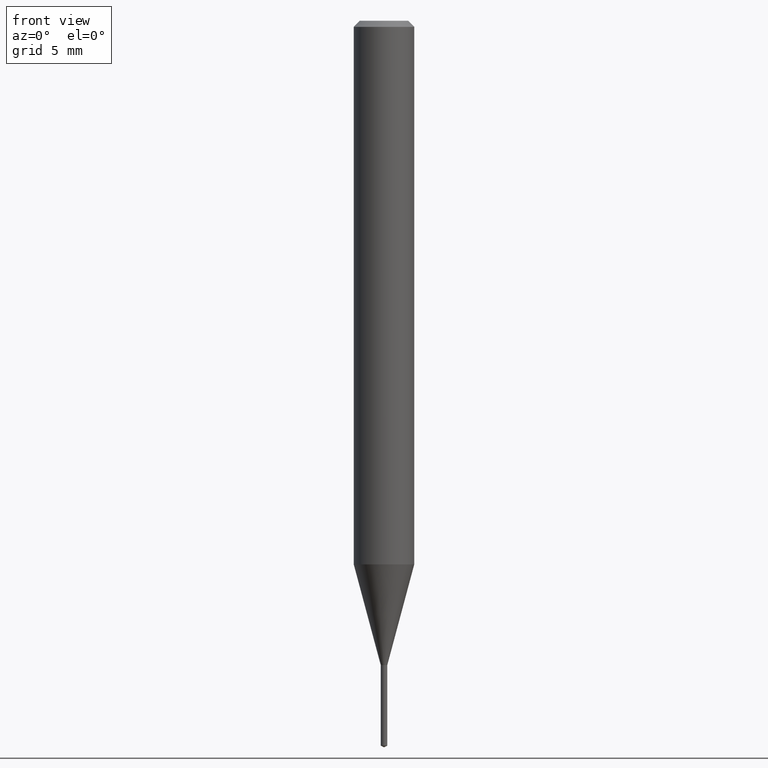
[diagram: clean part render]
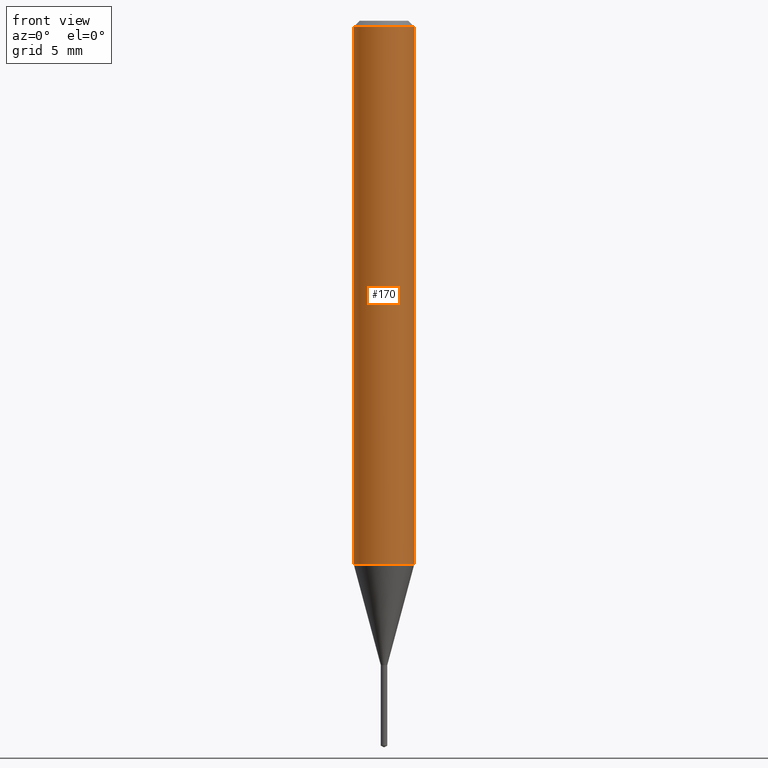
[diagram: same view with one face highlighted and labeled with its STEP entity id]
A machine part, front view. The second image highlights one B-rep face of the part: STEP entity #170.
In plain terms, the highlighted cylindrical surface (edge-blend (fillet) strip) has radius 1.5875 mm, axis along (-0, 0, 1).
Its self-contained STEP definition (entity closure, byte-faithful):
#13 = LINE ( 'NONE', #477, #33 ) ;
#16 = DIRECTION ( 'NONE',  ( -2.445468806185136597E-29, 3.491481338843145583E-15, 1.000000000000000000 ) ) ;
#33 = VECTOR ( 'NONE', #357, 39.37007874015748143 ) ;
#47 = CIRCLE ( 'NONE', #106, 0.06250000000000013878 ) ;
#69 = CARTESIAN_POINT ( 'NONE',  ( 3.056836007731442729E-31, -4.364351673553962300E-17, -0.01250000000000008916 ) ) ;
#84 = FACE_OUTER_BOUND ( 'NONE', #140, .T. ) ;
#96 = CARTESIAN_POINT ( 'NONE',  ( -0.06250000000000006939, 4.440892098500631092E-16, -3.074334431409319267E-30 ) ) ;
#106 = AXIS2_PLACEMENT_3D ( 'NONE', #316, #16, #387 ) ;
#132 = AXIS2_PLACEMENT_3D ( 'NONE', #237, #231, #379 ) ;
#140 = EDGE_LOOP ( 'NONE', ( #370, #143, #433, #408 ) ) ;
#143 = ORIENTED_EDGE ( 'NONE', *, *, #255, .T. ) ;
#170 = ADVANCED_FACE ( 'NONE', ( #84 ), #375, .T. ) ;
#173 = CARTESIAN_POINT ( 'NONE',  ( -0.06250000000000000000, -1.537043932328202372E-15, -0.01250000000000008916 ) ) ;
#177 = CARTESIAN_POINT ( 'NONE',  ( 0.06250000000000000000, -4.800786840909313294E-16, -0.01250000000000008916 ) ) ;
#183 = VERTEX_POINT ( 'NONE', #420 ) ;
#205 = CARTESIAN_POINT ( 'NONE',  ( -0.06250000000000013878, -3.474533557770928981E-15, -1.122338167478040827 ) ) ;
#231 = DIRECTION ( 'NONE',  ( -2.445468806185136597E-29, 3.491481338843145583E-15, 1.000000000000000000 ) ) ;
#237 = CARTESIAN_POINT ( 'NONE',  ( 0.000000000000000000, 0.000000000000000000, 0.000000000000000000 ) ) ;
#244 = DIRECTION ( 'NONE',  ( -2.445468806185136877E-29, 3.491481338843145188E-15, 1.000000000000000000 ) ) ;
#255 = EDGE_CURVE ( 'NONE', #350, #183, #47, .T. ) ;
#259 = DIRECTION ( 'NONE',  ( 1.000000000000000000, -6.982962677686266711E-15, 0.000000000000000000 ) ) ;
#291 = VECTOR ( 'NONE', #244, 39.37007874015748143 ) ;
#295 = DIRECTION ( 'NONE',  ( -2.445468806185136597E-29, 3.491481338843145583E-15, 1.000000000000000000 ) ) ;
#316 = CARTESIAN_POINT ( 'NONE',  ( 2.744642978558538366E-29, -3.918622767620992781E-15, -1.122338167478040827 ) ) ;
#319 = VERTEX_POINT ( 'NONE', #177 ) ;
#330 = VERTEX_POINT ( 'NONE', #173 ) ;
#343 = EDGE_CURVE ( 'NONE', #183, #319, #13, .T. ) ;
#350 = VERTEX_POINT ( 'NONE', #205 ) ;
#354 = LINE ( 'NONE', #96, #291 ) ;
#357 = DIRECTION ( 'NONE',  ( -2.445468806185136877E-29, 3.491481338843145188E-15, 1.000000000000000000 ) ) ;
#361 = EDGE_CURVE ( 'NONE', #350, #330, #354, .T. ) ;
#370 = ORIENTED_EDGE ( 'NONE', *, *, #361, .F. ) ;
#375 = CYLINDRICAL_SURFACE ( 'NONE', #132, 0.06250000000000006939 ) ;
#379 = DIRECTION ( 'NONE',  ( 1.000000000000000000, -6.982962677686266711E-15, 4.876176775795935793E-29 ) ) ;
#387 = DIRECTION ( 'NONE',  ( 1.000000000000000000, -6.982962677686262766E-15, 0.000000000000000000 ) ) ;
#408 = ORIENTED_EDGE ( 'NONE', *, *, #440, .F. ) ;
#420 = CARTESIAN_POINT ( 'NONE',  ( 0.06250000000000013878, -4.355057934976385239E-15, -1.122338167478040827 ) ) ;
#430 = AXIS2_PLACEMENT_3D ( 'NONE', #69, #295, #259 ) ;
#433 = ORIENTED_EDGE ( 'NONE', *, *, #343, .T. ) ;
#440 = EDGE_CURVE ( 'NONE', #330, #319, #456, .T. ) ;
#456 = CIRCLE ( 'NONE', #430, 0.06250000000000000000 ) ;
#477 = CARTESIAN_POINT ( 'NONE',  ( 0.06250000000000006939, -4.364351673553921624E-16, 3.047610484872463374E-30 ) ) ;